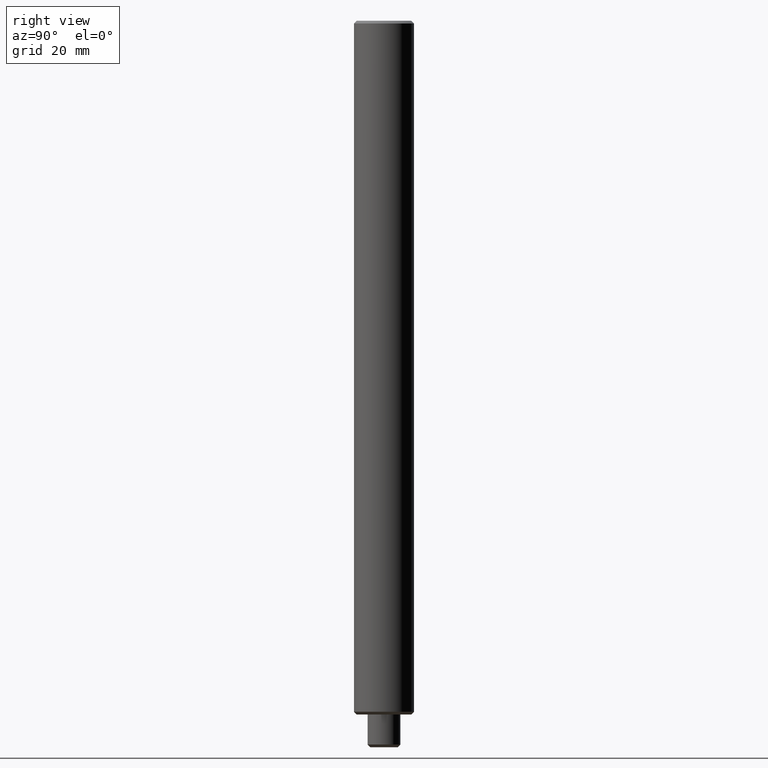
[diagram: clean part render]
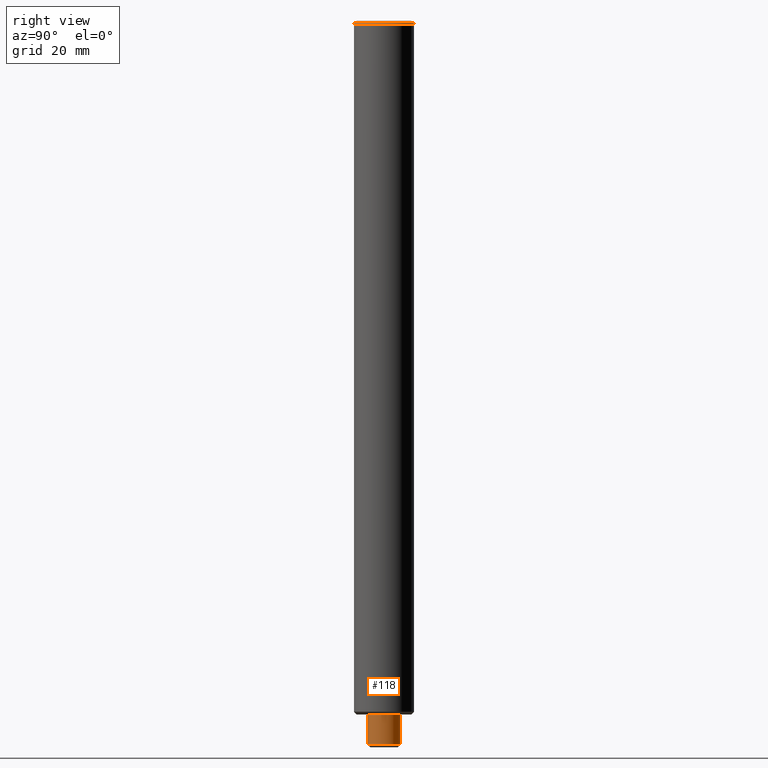
[diagram: same view with one face highlighted and labeled with its STEP entity id]
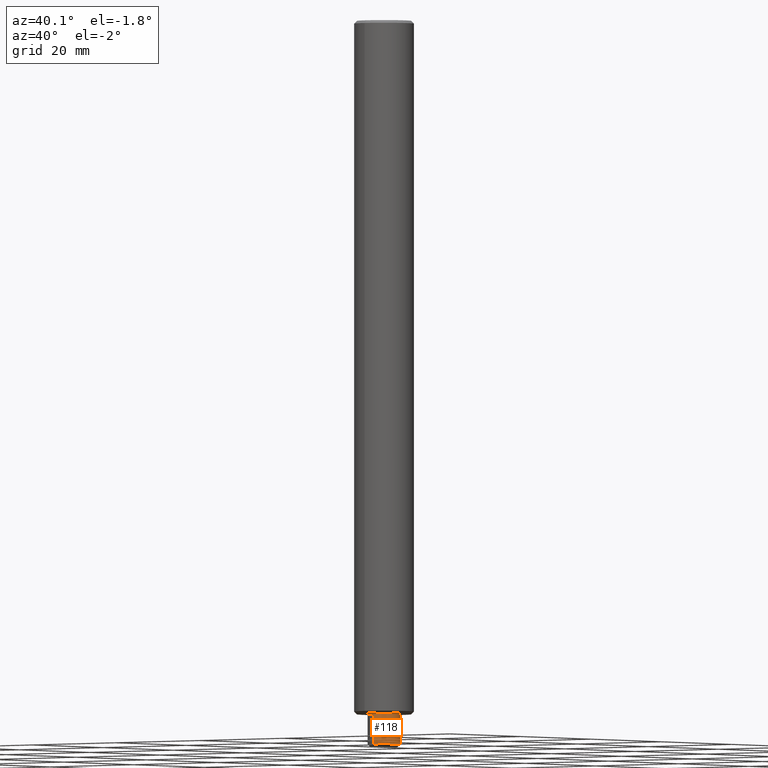
[diagram: same view with one face highlighted and labeled with its STEP entity id]
A machine part, right view. The second image highlights one B-rep face of the part: STEP entity #118.
A second angle (auxiliary view) of the same face is appended — the face is thin or edge-on in the first view.
In plain terms, the highlighted cylindrical surface (edge-blend (fillet) strip) has radius 3 mm, axis along (-0, -0, 1).
Its self-contained STEP definition (entity closure, byte-faithful):
#106=EDGE_CURVE('NONE',#208,#130,#282,.T.);
#118=ADVANCED_FACE('NONE',(#295),#296,.T.);
#130=VERTEX_POINT('NONE',#311);
#168=VERTEX_POINT('NONE',#356);
#186=EDGE_CURVE('NONE',#262,#130,#378,.T.);
#196=EDGE_CURVE('NONE',#168,#208,#389,.T.);
#208=VERTEX_POINT('NONE',#402);
#258=EDGE_CURVE('NONE',#168,#262,#454,.T.);
#262=VERTEX_POINT('NONE',#460);
#282=LINE('',#471,#472);
#295=FACE_OUTER_BOUND('',#488,.T.);
#296=CYLINDRICAL_SURFACE('',#489,3.0);
#311=CARTESIAN_POINT('',(0.0,3.0,0.0));
#356=CARTESIAN_POINT('',(-3.67381906146713E-016,-3.0,-5.50000000000001));
#378=CIRCLE('',#590,3.0);
#389=CIRCLE('',#604,3.0);
#402=CARTESIAN_POINT('',(0.0,3.0,-5.50000000000001));
#454=LINE('',#694,#695);
#460=CARTESIAN_POINT('',(-3.67381906146713E-016,-3.0,0.0));
#471=CARTESIAN_POINT('',(0.0,3.0,44.3839792060492));
#472=VECTOR('',#703,1000.0);
#488=EDGE_LOOP('',(#722,#723,#724,#725));
#489=AXIS2_PLACEMENT_3D('',#726,#727,#728);
#590=AXIS2_PLACEMENT_3D('',#849,#850,#851);
#604=AXIS2_PLACEMENT_3D('',#866,#867,#868);
#694=CARTESIAN_POINT('',(-3.67381906146713E-016,-3.0,44.3839792060492));
#695=VECTOR('',#929,1000.0);
#703=DIRECTION('',(0.0,-0.0,1.0));
#722=ORIENTED_EDGE('',*,*,#258,.F.);
#723=ORIENTED_EDGE('',*,*,#196,.T.);
#724=ORIENTED_EDGE('',*,*,#106,.T.);
#725=ORIENTED_EDGE('',*,*,#186,.F.);
#726=CARTESIAN_POINT('',(0.0,0.0,44.3839792060492));
#727=DIRECTION('',(-0.0,-0.0,1.0));
#728=DIRECTION('',(0.0,1.0,0.0));
#849=CARTESIAN_POINT('',(0.0,0.0,0.0));
#850=DIRECTION('',(0.0,-0.0,1.0));
#851=DIRECTION('',(0.0,1.0,0.0));
#866=CARTESIAN_POINT('',(0.0,0.0,-5.50000000000001));
#867=DIRECTION('',(0.0,-0.0,1.0));
#868=DIRECTION('',(0.0,1.0,0.0));
#929=DIRECTION('',(0.0,-0.0,1.0));